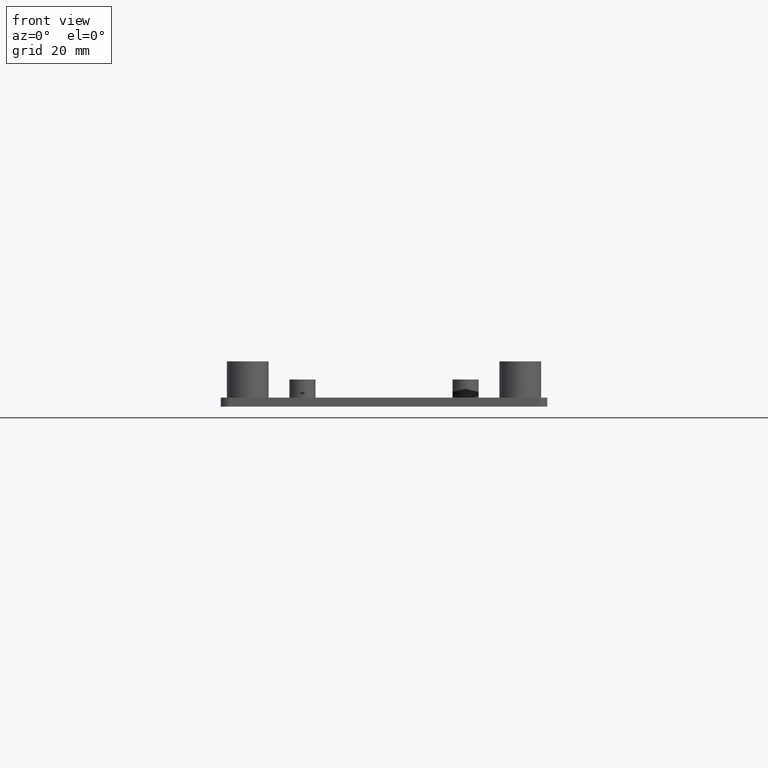
[diagram: clean part render]
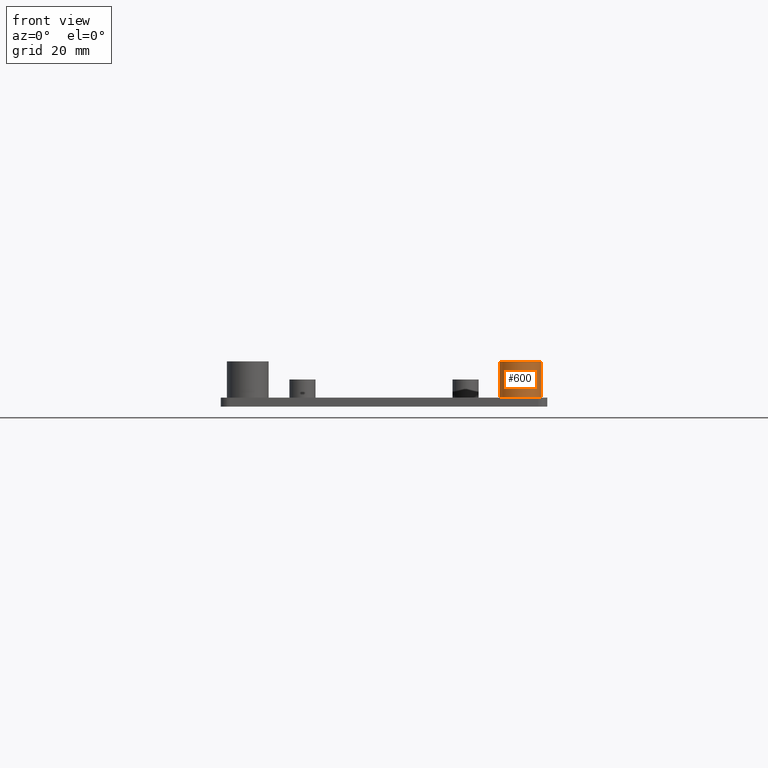
[diagram: same view with one face highlighted and labeled with its STEP entity id]
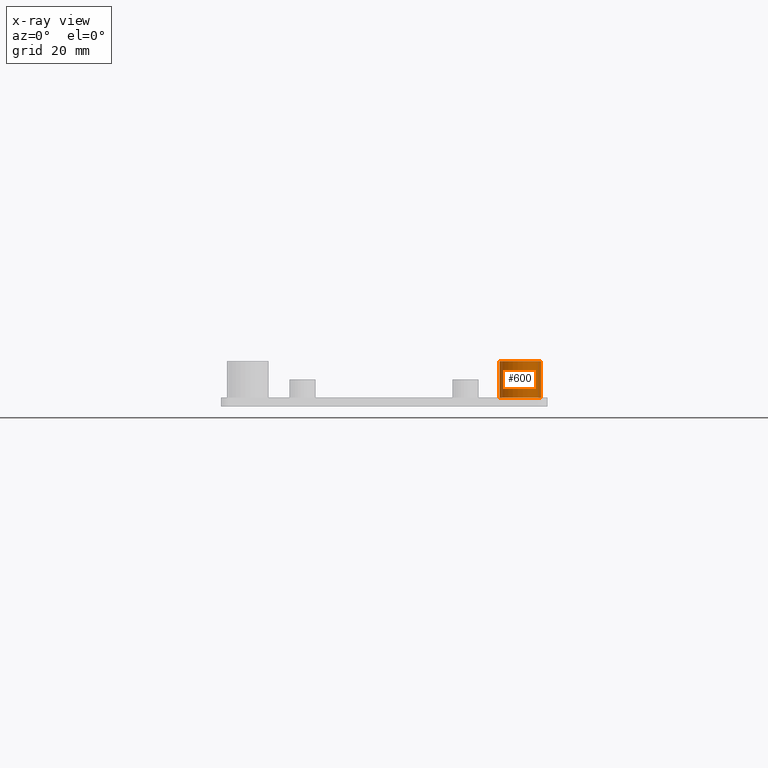
[diagram: x-ray of the same camera — body ghosted, the highlighted face saturated]
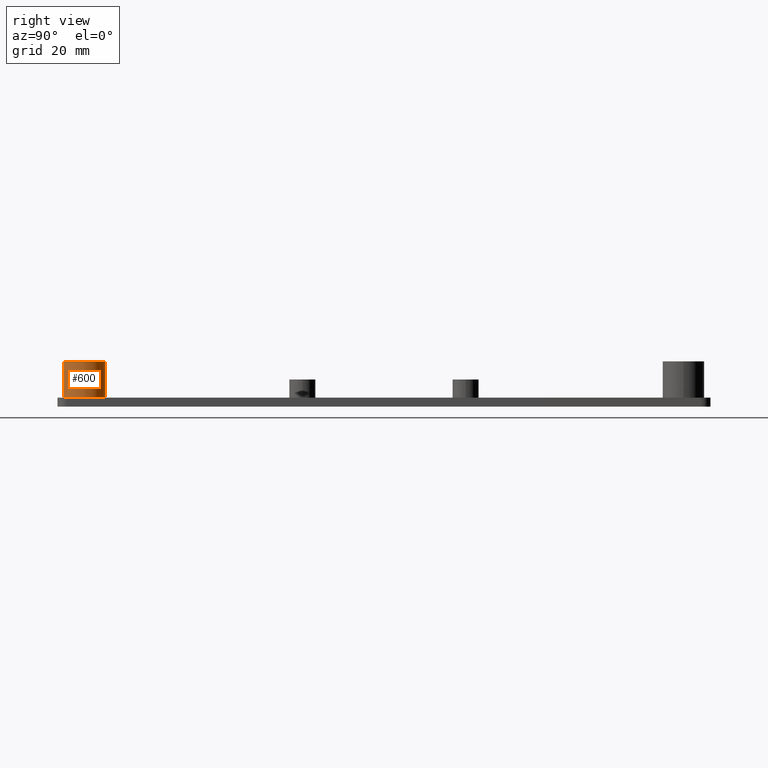
[diagram: same view with one face highlighted and labeled with its STEP entity id]
A machine part, front view. The second image highlights one B-rep face of the part: STEP entity #600.
The next image is the same camera in x-ray: the body ghosted, the highlighted face saturated — about 0% of this face is hidden behind the body in this view.
A second angle (right view) of the same face is appended — the face is thin or edge-on in the first view.
In plain terms, the highlighted cylindrical surface (bore or boss wall) has radius 5.75 mm, axis along (0, 0, 1).
Its self-contained STEP definition (entity closure, byte-faithful):
#273=CARTESIAN_POINT('',(-13.199998666665323,-82.550044500000070,0.0));
#274=VERTEX_POINT('',#273);
#275=CARTESIAN_POINT('',(-1.699998666665323,-82.550044500000070,0.0));
#276=VERTEX_POINT('',#275);
#277=CARTESIAN_POINT('',(-7.449998666665323,-82.550044500000070,0.0));
#278=DIRECTION('',(0.0,0.0,1.0));
#279=DIRECTION('',(1.0,0.0,0.0));
#280=AXIS2_PLACEMENT_3D('',#277,#278,#279);
#281=CIRCLE('',#280,5.750000000000000);
#282=EDGE_CURVE('',#274,#276,#281,.T.);
#284=CARTESIAN_POINT('',(-7.449998666665323,-82.550044500000070,0.0));
#285=DIRECTION('',(0.0,0.0,1.0));
#286=DIRECTION('',(1.0,0.0,0.0));
#287=AXIS2_PLACEMENT_3D('',#284,#285,#286);
#288=CIRCLE('',#287,5.750000000000000);
#289=EDGE_CURVE('',#276,#274,#288,.T.);
#566=CARTESIAN_POINT('',(-7.449998666665323,-82.550044500000070,0.0));
#567=DIRECTION('',(0.0,0.0,1.0));
#568=DIRECTION('',(1.0,0.0,0.0));
#569=AXIS2_PLACEMENT_3D('',#566,#567,#568);
#570=CYLINDRICAL_SURFACE('',#569,5.750000000000000);
#571=CARTESIAN_POINT('',(-13.199998666665323,-82.550044500000070,10.0));
#572=VERTEX_POINT('',#571);
#573=CARTESIAN_POINT('',(-1.699998666665323,-82.550044500000070,10.0));
#574=VERTEX_POINT('',#573);
#575=CARTESIAN_POINT('',(-7.449998666665323,-82.550044500000070,10.0));
#576=DIRECTION('',(0.0,0.0,1.0));
#577=DIRECTION('',(1.0,0.0,0.0));
#578=AXIS2_PLACEMENT_3D('',#575,#576,#577);
#579=CIRCLE('',#578,5.750000000000000);
#580=EDGE_CURVE('',#572,#574,#579,.T.);
#581=ORIENTED_EDGE('',*,*,#580,.F.);
#582=CARTESIAN_POINT('',(-7.449998666665323,-82.550044500000070,10.0));
#583=DIRECTION('',(0.0,0.0,1.0));
#584=DIRECTION('',(1.0,0.0,0.0));
#585=AXIS2_PLACEMENT_3D('',#582,#583,#584);
#586=CIRCLE('',#585,5.750000000000000);
#587=EDGE_CURVE('',#574,#572,#586,.T.);
#588=ORIENTED_EDGE('',*,*,#587,.F.);
#589=CARTESIAN_POINT('',(-1.699998666665323,-82.550044500000070,0.0));
#590=DIRECTION('',(0.0,0.0,1.0));
#591=VECTOR('',#590,10.0);
#592=LINE('',#589,#591);
#593=EDGE_CURVE('',#276,#574,#592,.T.);
#594=ORIENTED_EDGE('',*,*,#593,.F.);
#595=ORIENTED_EDGE('',*,*,#289,.T.);
#596=ORIENTED_EDGE('',*,*,#282,.T.);
#597=ORIENTED_EDGE('',*,*,#593,.T.);
#598=EDGE_LOOP('',(#581,#588,#594,#595,#596,#597));
#599=FACE_OUTER_BOUND('',#598,.T.);
#600=ADVANCED_FACE('',(#599),#570,.T.);